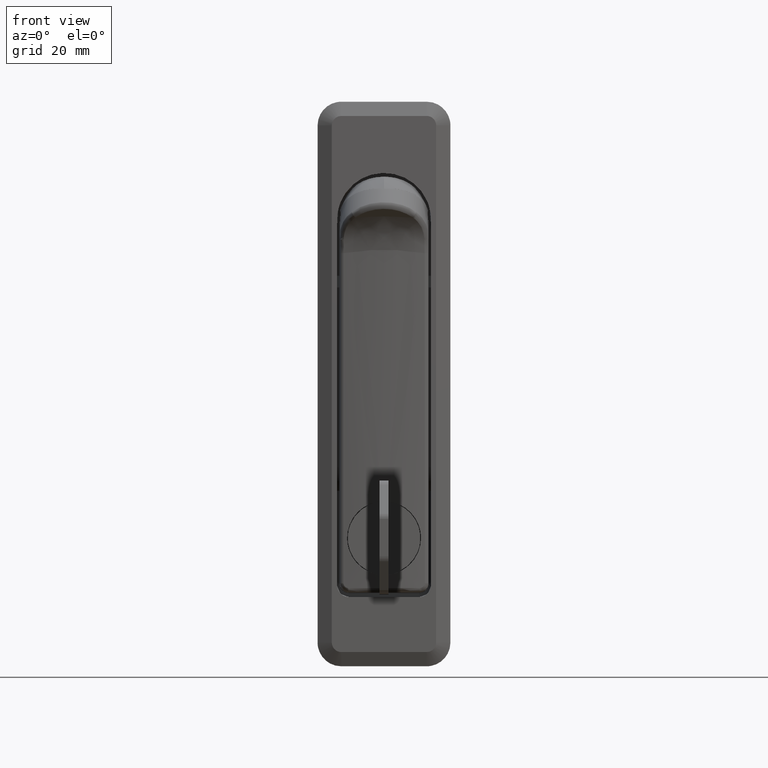
[diagram: clean part render]
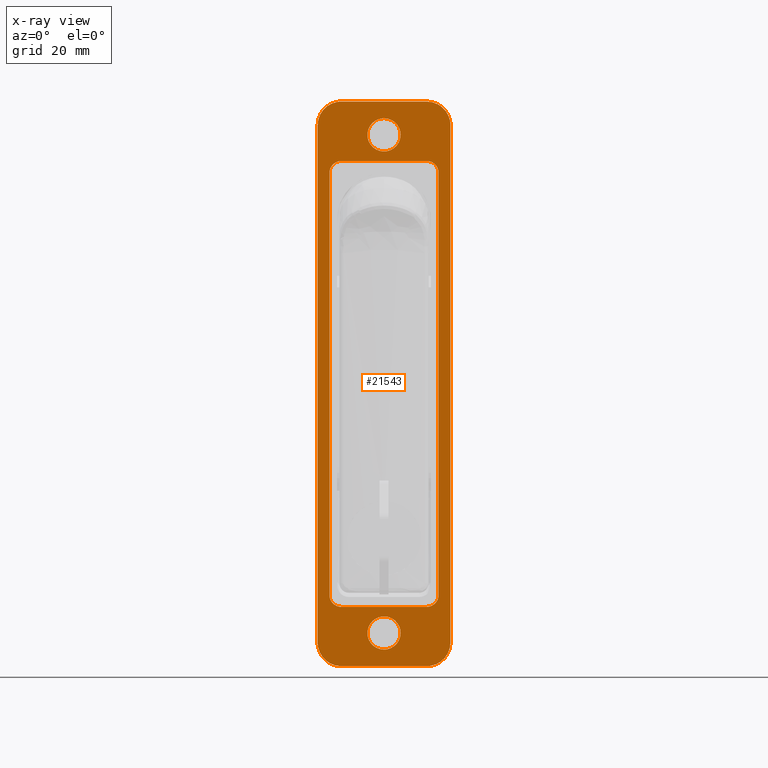
[diagram: x-ray — body ghosted, one internal face saturated and labeled with its STEP entity id]
A machine part, front view, then the same camera in x-ray: the body is ghosted and one INTERNAL B-rep face — a face not visible from any outside direction — is saturated and labeled: STEP entity #21543.
In plain terms, the highlighted face is a freeform B-spline surface patch.
Its self-contained STEP definition (entity closure, byte-faithful):
#14810=CARTESIAN_POINT('',(-7.632783E-017,-3.499866730716067,18.030542875196151));
#14811=VERTEX_POINT('',#14810);
#14817=CARTESIAN_POINT('',(0.0,0.0,14.500000000000220));
#14818=VERTEX_POINT('',#14817);
#14819=CARTESIAN_POINT('',(-7.632783E-017,-3.499866730716067,18.030542875196147));
#14820=CARTESIAN_POINT('',(0.0,-3.499999999999774,18.015271728824345));
#14821=CARTESIAN_POINT('',(0.0,-3.499999999999775,18.0));
#14822=CARTESIAN_POINT('',(0.0,-3.499999999999774,14.500000000000227));
#14823=CARTESIAN_POINT('',(0.0,0.0,14.500000000000220));
#14831=(BOUNDED_CURVE()B_SPLINE_CURVE(2,(#14819,#14820,#14821,#14822,#14823),.UNSPECIFIED.,.F.,.U.)B_SPLINE_CURVE_WITH_KNOTS((3,2,3),(0.248460105569204,0.250000000000000,0.500000000000000),.UNSPECIFIED.)CURVE()GEOMETRIC_REPRESENTATION_ITEM()RATIONAL_B_SPLINE_CURVE((0.996414027878677,0.998195901454125,1.0,0.707106781186548,1.0))REPRESENTATION_ITEM(''));
#14832=EDGE_CURVE('',#14811,#14818,#14831,.T.);
#14834=CARTESIAN_POINT('',(-7.976689E-017,3.472931748348015,17.565551992391701));
#14835=VERTEX_POINT('',#14834);
#14836=CARTESIAN_POINT('',(0.0,0.0,14.500000000000220));
#14837=CARTESIAN_POINT('',(0.0,3.089445099935811,14.500000000000226));
#14838=CARTESIAN_POINT('',(-7.976689E-017,3.472931748348014,17.565551992391701));
#14846=(BOUNDED_CURVE()B_SPLINE_CURVE(2,(#14836,#14837,#14838),.UNSPECIFIED.,.F.,.U.)B_SPLINE_CURVE_WITH_KNOTS((3,3),(0.500000000000000,0.728526070997352),.UNSPECIFIED.)CURVE()GEOMETRIC_REPRESENTATION_ITEM()RATIONAL_B_SPLINE_CURVE((1.0,0.732265053931176,0.954005430212723))REPRESENTATION_ITEM(''));
#14847=EDGE_CURVE('',#14818,#14835,#14846,.T.);
#14882=CARTESIAN_POINT('',(0.0,0.0,21.499999999999769));
#14883=VERTEX_POINT('',#14882);
#14884=CARTESIAN_POINT('',(-7.976689E-017,3.472931748348015,17.565551992391697));
#14885=CARTESIAN_POINT('',(0.0,3.499999999999775,17.781932753300005));
#14886=CARTESIAN_POINT('',(0.0,3.499999999999775,18.0));
#14887=CARTESIAN_POINT('',(0.0,3.499999999999774,21.499999999999769));
#14888=CARTESIAN_POINT('',(0.0,0.0,21.499999999999769));
#14896=(BOUNDED_CURVE()B_SPLINE_CURVE(2,(#14884,#14885,#14886,#14887,#14888),.UNSPECIFIED.,.F.,.U.)B_SPLINE_CURVE_WITH_KNOTS((3,2,3),(0.728526070997353,0.750000000000000,1.0),.UNSPECIFIED.)CURVE()GEOMETRIC_REPRESENTATION_ITEM()RATIONAL_B_SPLINE_CURVE((0.954005430212725,0.974841727255373,1.0,0.707106781186548,1.0))REPRESENTATION_ITEM(''));
#14897=EDGE_CURVE('',#14835,#14883,#14896,.T.);
#14899=CARTESIAN_POINT('',(0.0,0.0,21.499999999999769));
#14900=CARTESIAN_POINT('',(0.0,-3.469589235194919,21.499999999999773));
#14901=CARTESIAN_POINT('',(-7.632783E-017,-3.499866730716067,18.030542875196151));
#14909=(BOUNDED_CURVE()B_SPLINE_CURVE(2,(#14899,#14900,#14901),.UNSPECIFIED.,.F.,.U.)B_SPLINE_CURVE_WITH_KNOTS((3,3),(0.0,0.248460105569204),.UNSPECIFIED.)CURVE()GEOMETRIC_REPRESENTATION_ITEM()RATIONAL_B_SPLINE_CURVE((1.0,0.708910879732423,0.996414027878677))REPRESENTATION_ITEM(''));
#14910=EDGE_CURVE('',#14883,#14811,#14909,.T.);
#15154=CARTESIAN_POINT('',(-7.632783E-017,-3.499866730716057,-86.969457124803853));
#15155=VERTEX_POINT('',#15154);
#15161=CARTESIAN_POINT('',(0.0,0.0,-90.499999999999758));
#15162=VERTEX_POINT('',#15161);
#15163=CARTESIAN_POINT('',(-7.632783E-017,-3.499866730716057,-86.969457124803853));
#15164=CARTESIAN_POINT('',(0.0,-3.499999999999765,-86.984728271175655));
#15165=CARTESIAN_POINT('',(0.0,-3.499999999999765,-87.0));
#15166=CARTESIAN_POINT('',(0.0,-3.499999999999764,-90.499999999999744));
#15167=CARTESIAN_POINT('',(0.0,0.0,-90.499999999999758));
#15175=(BOUNDED_CURVE()B_SPLINE_CURVE(2,(#15163,#15164,#15165,#15166,#15167),.UNSPECIFIED.,.F.,.U.)B_SPLINE_CURVE_WITH_KNOTS((3,2,3),(0.248460105569204,0.250000000000000,0.500000000000000),.UNSPECIFIED.)CURVE()GEOMETRIC_REPRESENTATION_ITEM()RATIONAL_B_SPLINE_CURVE((0.996414027878678,0.998195901454125,1.0,0.707106781186548,1.0))REPRESENTATION_ITEM(''));
#15176=EDGE_CURVE('',#15155,#15162,#15175,.T.);
#15178=CARTESIAN_POINT('',(-7.976689E-017,3.472931748348004,-87.434448007608296));
#15179=VERTEX_POINT('',#15178);
#15180=CARTESIAN_POINT('',(0.0,0.0,-90.499999999999758));
#15181=CARTESIAN_POINT('',(0.0,3.089445099935803,-90.499999999999744));
#15182=CARTESIAN_POINT('',(-7.976689E-017,3.472931748348004,-87.434448007608296));
#15190=(BOUNDED_CURVE()B_SPLINE_CURVE(2,(#15180,#15181,#15182),.UNSPECIFIED.,.F.,.U.)B_SPLINE_CURVE_WITH_KNOTS((3,3),(0.500000000000000,0.728526070997352),.UNSPECIFIED.)CURVE()GEOMETRIC_REPRESENTATION_ITEM()RATIONAL_B_SPLINE_CURVE((1.0,0.732265053931176,0.954005430212723))REPRESENTATION_ITEM(''));
#15191=EDGE_CURVE('',#15162,#15179,#15190,.T.);
#15226=CARTESIAN_POINT('',(0.0,0.0,-83.500000000000227));
#15227=VERTEX_POINT('',#15226);
#15228=CARTESIAN_POINT('',(-7.976689E-017,3.472931748348004,-87.434448007608296));
#15229=CARTESIAN_POINT('',(0.0,3.499999999999766,-87.218067246700002));
#15230=CARTESIAN_POINT('',(0.0,3.499999999999765,-87.0));
#15231=CARTESIAN_POINT('',(0.0,3.499999999999764,-83.500000000000227));
#15232=CARTESIAN_POINT('',(0.0,0.0,-83.500000000000227));
#15240=(BOUNDED_CURVE()B_SPLINE_CURVE(2,(#15228,#15229,#15230,#15231,#15232),.UNSPECIFIED.,.F.,.U.)B_SPLINE_CURVE_WITH_KNOTS((3,2,3),(0.728526070997353,0.750000000000000,1.0),.UNSPECIFIED.)CURVE()GEOMETRIC_REPRESENTATION_ITEM()RATIONAL_B_SPLINE_CURVE((0.954005430212724,0.974841727255373,1.0,0.707106781186548,1.0))REPRESENTATION_ITEM(''));
#15241=EDGE_CURVE('',#15179,#15227,#15240,.T.);
#15243=CARTESIAN_POINT('',(0.0,0.0,-83.500000000000227));
#15244=CARTESIAN_POINT('',(0.0,-3.469589235194921,-83.500000000000242));
#15245=CARTESIAN_POINT('',(-7.632783E-017,-3.499866730716057,-86.969457124803853));
#15253=(BOUNDED_CURVE()B_SPLINE_CURVE(2,(#15243,#15244,#15245),.UNSPECIFIED.,.F.,.U.)B_SPLINE_CURVE_WITH_KNOTS((3,3),(0.0,0.248460105569204),.UNSPECIFIED.)CURVE()GEOMETRIC_REPRESENTATION_ITEM()RATIONAL_B_SPLINE_CURVE((1.0,0.708910879732422,0.996414027878678))REPRESENTATION_ITEM(''));
#15254=EDGE_CURVE('',#15227,#15155,#15253,.T.);
#17729=CARTESIAN_POINT('',(7.993606E-015,-9.000000000000119,-81.493864799750398));
#17730=VERTEX_POINT('',#17729);
#17745=CARTESIAN_POINT('',(0.0,-11.500000000000121,-78.993670632525991));
#17746=VERTEX_POINT('',#17745);
#17760=CARTESIAN_POINT('',(7.993606E-015,-9.000000000000119,-81.493864799750398));
#17761=CARTESIAN_POINT('',(7.993606E-015,-9.165074329170757,-81.493864799750426));
#17762=CARTESIAN_POINT('',(-2.235030E-031,-9.327391343037091,-81.477674388700962));
#17763=CARTESIAN_POINT('',(0.0,-9.566900107195949,-81.430096760348107));
#17764=CARTESIAN_POINT('',(0.0,-9.646070324395859,-81.410326710087077));
#17765=CARTESIAN_POINT('',(0.0,-9.803048365762519,-81.362786906671559));
#17766=CARTESIAN_POINT('',(0.0,-9.881072053864902,-81.334882072726060));
#17767=CARTESIAN_POINT('',(0.0,-10.108040808182251,-81.240859154536381));
#17768=CARTESIAN_POINT('',(0.0,-10.251576015377520,-81.164143533055679));
#17769=CARTESIAN_POINT('',(0.0,-10.421362123544560,-81.050866999031456));
#17770=CARTESIAN_POINT('',(0.0,-10.454833367573951,-81.027334774011564));
#17771=CARTESIAN_POINT('',(0.0,-10.520788427538561,-80.978488567621909));
#17772=CARTESIAN_POINT('',(0.0,-10.553355057647529,-80.953105395973381));
#17773=CARTESIAN_POINT('',(0.0,-10.648896623946451,-80.874755059834683));
#17774=CARTESIAN_POINT('',(0.0,-10.709520435004951,-80.819787983007117));
#17775=CARTESIAN_POINT('',(0.0,-10.882468796804909,-80.646943140512192));
#17776=CARTESIAN_POINT('',(0.0,-10.985954604402490,-80.521196834601625));
#17777=CARTESIAN_POINT('',(0.0,-11.100197798885050,-80.350558913768722));
#17778=CARTESIAN_POINT('',(0.0,-11.122341040200590,-80.315652816068123));
#17779=CARTESIAN_POINT('',(0.0,-11.164691418781510,-80.245090244805041));
#17780=CARTESIAN_POINT('',(0.0,-11.184916982069121,-80.209418556354549));
#17781=CARTESIAN_POINT('',(0.0,-11.242797571600709,-80.101253980092409));
#17782=CARTESIAN_POINT('',(0.0,-11.312528653892381,-79.953974621853575));
#17783=CARTESIAN_POINT('',(0.0,-11.367601229801110,-79.800668973058109));
#17784=CARTESIAN_POINT('',(0.0,-11.403335016687780,-79.683399576417145));
#17785=CARTESIAN_POINT('',(0.0,-11.414316195575511,-79.643927408916824));
#17786=CARTESIAN_POINT('',(0.0,-11.434385337781951,-79.564204749930880));
#17787=CARTESIAN_POINT('',(0.0,-11.443484754205620,-79.523879741024089));
#17788=CARTESIAN_POINT('',(0.0,-11.483811488288600,-79.322019323713093));
#17789=CARTESIAN_POINT('',(0.0,-11.500000000000110,-79.158744599424352));
#17790=CARTESIAN_POINT('',(0.0,-11.500000000000121,-78.993670632525991));
#17791=B_SPLINE_CURVE_WITH_KNOTS('',3,(#17760,#17761,#17762,#17763,#17764,#17765,#17766,#17767,#17768,#17769,#17770,#17771,#17772,#17773,#17774,#17775,#17776,#17777,#17778,#17779,#17780,#17781,#17782,#17783,#17784,#17785,#17786,#17787,#17788,#17789,#17790),.UNSPECIFIED.,.F.,.U.,(4,2,2,2,2,2,2,2,2,2,2,1,2,2,2,4),(0.0,0.125000000000001,0.187500000000000,0.250000000000000,0.374999999999995,0.406249999999993,0.437499999999992,0.499999999999996,0.625000000000004,0.656250000000006,0.687500000000007,0.750000000000002,0.812499999999996,0.843749999999998,0.875000000000001,1.0),.UNSPECIFIED.);
#17792=EDGE_CURVE('',#17730,#17746,#17791,.T.);
#17814=CARTESIAN_POINT('',(0.0,11.500000000000000,-78.993670632525991));
#17815=VERTEX_POINT('',#17814);
#17830=CARTESIAN_POINT('',(7.993606E-015,9.0,-81.493864799750398));
#17831=VERTEX_POINT('',#17830);
#17845=CARTESIAN_POINT('',(0.0,11.500000000000000,-78.993670632525991));
#17846=CARTESIAN_POINT('',(0.0,11.500000000000000,-79.158744818135887));
#17847=CARTESIAN_POINT('',(0.0,11.483813401081839,-79.321062428913109));
#17848=CARTESIAN_POINT('',(0.0,11.436246513696091,-79.560573075113709));
#17849=CARTESIAN_POINT('',(0.0,11.416480892726740,-79.639744086285830));
#17850=CARTESIAN_POINT('',(0.0,11.368951660947699,-79.796724052424381));
#17851=CARTESIAN_POINT('',(0.0,11.341052630769230,-79.874750048611119));
#17852=CARTESIAN_POINT('',(0.0,11.247047746570200,-80.101728307927814));
#17853=CARTESIAN_POINT('',(0.0,11.170346089879400,-80.245270903969953));
#17854=CARTESIAN_POINT('',(0.0,11.057089079221839,-80.415067364031572));
#17855=CARTESIAN_POINT('',(0.0,11.033560863986800,-80.448540735183968));
#17856=CARTESIAN_POINT('',(0.0,10.984722884901091,-80.514500161455359));
#17857=CARTESIAN_POINT('',(0.0,10.959344272171030,-80.547068669626697));
#17858=CARTESIAN_POINT('',(0.0,10.881003265224489,-80.642621354472382));
#17859=CARTESIAN_POINT('',(0.0,10.826042466060461,-80.703252400838082));
#17860=CARTESIAN_POINT('',(0.0,10.653216634566430,-80.876221964000919));
#17861=CARTESIAN_POINT('',(0.0,10.527483239361670,-80.979721239032571));
#17862=CARTESIAN_POINT('',(0.0,10.356861773579460,-81.093980430197433));
#17863=CARTESIAN_POINT('',(0.0,10.321958781197781,-81.116127014972761));
#17864=CARTESIAN_POINT('',(0.0,10.251398642651600,-81.158485984354371));
#17865=CARTESIAN_POINT('',(0.0,10.215728179914260,-81.178715623290572));
#17866=CARTESIAN_POINT('',(0.0,10.107567321807480,-81.236607825503299));
#17867=CARTESIAN_POINT('',(0.0,9.960293015809956,-81.306352721004657));
#17868=CARTESIAN_POINT('',(0.0,9.806992787078897,-81.361436261616134));
#17869=CARTESIAN_POINT('',(0.0,9.689727609931174,-81.397177225189850));
#17870=CARTESIAN_POINT('',(0.0,9.650256876583740,-81.408160626071549));
#17871=CARTESIAN_POINT('',(0.0,9.570537147888800,-81.428233879595865));
#17872=CARTESIAN_POINT('',(0.0,9.530212749098618,-81.437335413480682));
#17873=CARTESIAN_POINT('',(0.0,9.328350375977207,-81.477672387923718));
#17874=CARTESIAN_POINT('',(0.0,9.165074551767228,-81.493864799750398));
#17875=CARTESIAN_POINT('',(0.0,8.999999999999998,-81.493864799750398));
#17876=B_SPLINE_CURVE_WITH_KNOTS('',3,(#17845,#17846,#17847,#17848,#17849,#17850,#17851,#17852,#17853,#17854,#17855,#17856,#17857,#17858,#17859,#17860,#17861,#17862,#17863,#17864,#17865,#17866,#17867,#17868,#17869,#17870,#17871,#17872,#17873,#17874,#17875),.UNSPECIFIED.,.F.,.U.,(4,2,2,2,2,2,2,2,2,2,2,1,2,2,2,4),(0.0,0.124999999999996,0.187500000000000,0.250000000000003,0.375000000000000,0.406249999999998,0.437499999999996,0.499999999999991,0.624999999999991,0.656249999999992,0.687499999999993,0.749999999999997,0.812500000000001,0.843750000000001,0.875000000000001,1.0),.UNSPECIFIED.);
#17877=EDGE_CURVE('',#17815,#17831,#17876,.T.);
#17954=CARTESIAN_POINT('',(0.0,-11.500000000000121,10.0));
#17955=VERTEX_POINT('',#17954);
#17962=CARTESIAN_POINT('',(0.0,-9.000000000000119,12.500000000000000));
#17963=VERTEX_POINT('',#17962);
#17969=CARTESIAN_POINT('',(0.0,-11.500000000000121,10.0));
#17970=CARTESIAN_POINT('',(0.0,-11.500000000000119,12.500000000000000));
#17971=CARTESIAN_POINT('',(0.0,-9.000000000000119,12.500000000000000));
#17979=(BOUNDED_CURVE()B_SPLINE_CURVE(2,(#17969,#17970,#17971),.UNSPECIFIED.,.F.,.U.)CURVE()GEOMETRIC_REPRESENTATION_ITEM()QUASI_UNIFORM_CURVE()RATIONAL_B_SPLINE_CURVE((1.0,0.707106781186548,1.0))REPRESENTATION_ITEM(''));
#17980=EDGE_CURVE('',#17955,#17963,#17979,.T.);
#17999=CARTESIAN_POINT('',(0.0,9.0,12.500000000000000));
#18000=VERTEX_POINT('',#17999);
#18007=CARTESIAN_POINT('',(0.0,11.500000000000000,10.0));
#18008=VERTEX_POINT('',#18007);
#18014=CARTESIAN_POINT('',(0.0,9.0,12.500000000000000));
#18015=CARTESIAN_POINT('',(0.0,11.500000000000000,12.500000000000000));
#18016=CARTESIAN_POINT('',(0.0,11.500000000000000,10.0));
#18024=(BOUNDED_CURVE()B_SPLINE_CURVE(2,(#18014,#18015,#18016),.UNSPECIFIED.,.F.,.U.)CURVE()GEOMETRIC_REPRESENTATION_ITEM()QUASI_UNIFORM_CURVE()RATIONAL_B_SPLINE_CURVE((1.0,0.707106781186548,1.0))REPRESENTATION_ITEM(''));
#18025=EDGE_CURVE('',#18000,#18008,#18024,.T.);
#20590=CARTESIAN_POINT('',(0.0,-9.000000000000119,12.500000000000000));
#20591=CARTESIAN_POINT('',(0.0,9.0,12.500000000000000));
#20592=QUASI_UNIFORM_CURVE('',1,(#20590,#20591),.UNSPECIFIED.,.F.,.U.);
#20593=EDGE_CURVE('',#17963,#18000,#20592,.T.);
#20913=CARTESIAN_POINT('',(7.993606E-015,-9.000000000000119,-81.493864799750398));
#20914=CARTESIAN_POINT('',(7.993606E-015,9.0,-81.493864799750398));
#20915=QUASI_UNIFORM_CURVE('',1,(#20913,#20914),.UNSPECIFIED.,.F.,.U.);
#20916=EDGE_CURVE('',#17730,#17831,#20915,.T.);
#21120=CARTESIAN_POINT('',(0.0,-11.500000000000121,10.0));
#21121=CARTESIAN_POINT('',(0.0,-11.500000000000121,-78.993670632525991));
#21122=QUASI_UNIFORM_CURVE('',1,(#21120,#21121),.UNSPECIFIED.,.F.,.U.);
#21123=EDGE_CURVE('',#17955,#17746,#21122,.T.);
#21188=CARTESIAN_POINT('',(0.0,11.500000000000000,-78.993670632525991));
#21189=CARTESIAN_POINT('',(0.0,11.500000000000000,10.0));
#21190=QUASI_UNIFORM_CURVE('',1,(#21188,#21189),.UNSPECIFIED.,.F.,.U.);
#21191=EDGE_CURVE('',#17815,#18008,#21190,.T.);
#21267=CARTESIAN_POINT('',(0.0,14.0,-89.0));
#21268=VERTEX_POINT('',#21267);
#21275=CARTESIAN_POINT('',(0.0,14.0,20.0));
#21276=VERTEX_POINT('',#21275);
#21282=CARTESIAN_POINT('',(0.0,14.0,-89.0));
#21283=CARTESIAN_POINT('',(0.0,14.0,20.0));
#21284=QUASI_UNIFORM_CURVE('',1,(#21282,#21283),.UNSPECIFIED.,.F.,.U.);
#21285=EDGE_CURVE('',#21268,#21276,#21284,.T.);
#21304=CARTESIAN_POINT('',(0.0,9.0,-94.0));
#21305=VERTEX_POINT('',#21304);
#21313=CARTESIAN_POINT('',(0.0,8.999999999999890,-94.0));
#21314=CARTESIAN_POINT('',(0.0,13.999999999999892,-94.000000000000014));
#21315=CARTESIAN_POINT('',(0.0,13.999999999999890,-89.0));
#21323=(BOUNDED_CURVE()B_SPLINE_CURVE(2,(#21313,#21314,#21315),.UNSPECIFIED.,.F.,.U.)CURVE()GEOMETRIC_REPRESENTATION_ITEM()QUASI_UNIFORM_CURVE()RATIONAL_B_SPLINE_CURVE((1.0,0.707106781186548,1.0))REPRESENTATION_ITEM(''));
#21324=EDGE_CURVE('',#21305,#21268,#21323,.T.);
#21334=CARTESIAN_POINT('',(0.0,-9.0,-94.0));
#21335=VERTEX_POINT('',#21334);
#21343=CARTESIAN_POINT('',(0.0,-9.0,-94.0));
#21344=CARTESIAN_POINT('',(0.0,9.0,-94.0));
#21345=QUASI_UNIFORM_CURVE('',1,(#21343,#21344),.UNSPECIFIED.,.F.,.U.);
#21346=EDGE_CURVE('',#21335,#21305,#21345,.T.);
#21365=CARTESIAN_POINT('',(0.0,-14.0,-89.0));
#21366=VERTEX_POINT('',#21365);
#21374=CARTESIAN_POINT('',(0.0,-14.0,-89.0));
#21375=CARTESIAN_POINT('',(0.0,-13.999999999999998,-94.000000000000014));
#21376=CARTESIAN_POINT('',(0.0,-9.0,-94.0));
#21384=(BOUNDED_CURVE()B_SPLINE_CURVE(2,(#21374,#21375,#21376),.UNSPECIFIED.,.F.,.U.)CURVE()GEOMETRIC_REPRESENTATION_ITEM()QUASI_UNIFORM_CURVE()RATIONAL_B_SPLINE_CURVE((1.0,0.707106781186548,1.0))REPRESENTATION_ITEM(''));
#21385=EDGE_CURVE('',#21366,#21335,#21384,.T.);
#21395=CARTESIAN_POINT('',(0.0,-14.0,20.0));
#21396=VERTEX_POINT('',#21395);
#21404=CARTESIAN_POINT('',(0.0,-14.0,20.0));
#21405=CARTESIAN_POINT('',(0.0,-14.0,-89.0));
#21406=QUASI_UNIFORM_CURVE('',1,(#21404,#21405),.UNSPECIFIED.,.F.,.U.);
#21407=EDGE_CURVE('',#21396,#21366,#21406,.T.);
#21426=CARTESIAN_POINT('',(0.0,-9.0,25.0));
#21427=VERTEX_POINT('',#21426);
#21435=CARTESIAN_POINT('',(0.0,-9.0,25.0));
#21436=CARTESIAN_POINT('',(0.0,-13.999999999999998,25.0));
#21437=CARTESIAN_POINT('',(0.0,-14.0,20.0));
#21445=(BOUNDED_CURVE()B_SPLINE_CURVE(2,(#21435,#21436,#21437),.UNSPECIFIED.,.F.,.U.)CURVE()GEOMETRIC_REPRESENTATION_ITEM()QUASI_UNIFORM_CURVE()RATIONAL_B_SPLINE_CURVE((1.0,0.707106781186548,1.0))REPRESENTATION_ITEM(''));
#21446=EDGE_CURVE('',#21427,#21396,#21445,.T.);
#21456=CARTESIAN_POINT('',(0.0,9.0,25.0));
#21457=VERTEX_POINT('',#21456);
#21465=CARTESIAN_POINT('',(0.0,9.0,25.0));
#21466=CARTESIAN_POINT('',(0.0,-9.0,25.0));
#21467=QUASI_UNIFORM_CURVE('',1,(#21465,#21466),.UNSPECIFIED.,.F.,.U.);
#21468=EDGE_CURVE('',#21457,#21427,#21467,.T.);
#21490=CARTESIAN_POINT('',(0.0,14.0,20.0));
#21491=CARTESIAN_POINT('',(0.0,13.999999999999892,25.0));
#21492=CARTESIAN_POINT('',(0.0,9.0,25.0));
#21500=(BOUNDED_CURVE()B_SPLINE_CURVE(2,(#21490,#21491,#21492),.UNSPECIFIED.,.F.,.U.)CURVE()GEOMETRIC_REPRESENTATION_ITEM()QUASI_UNIFORM_CURVE()RATIONAL_B_SPLINE_CURVE((1.0,0.707106781186548,1.0))REPRESENTATION_ITEM(''));
#21501=EDGE_CURVE('',#21276,#21457,#21500,.T.);
#21506=CARTESIAN_POINT('',(0.0,-15.398599945730570,30.944049769354919));
#21507=CARTESIAN_POINT('',(0.0,15.398600696749090,30.944049769354919));
#21508=CARTESIAN_POINT('',(0.0,-15.398599945730570,-99.944052961183658));
#21509=CARTESIAN_POINT('',(0.0,15.398600696749090,-99.944052961183658));
#21510=B_SPLINE_SURFACE_WITH_KNOTS('',1,1,((#21506,#21508),(#21507,#21509)),.UNSPECIFIED.,.F.,.F.,.U.,(2,2),(2,2),(0.0,30.797200642479659),(0.0,130.888102730538610),.UNSPECIFIED.);
#21511=ORIENTED_EDGE('',*,*,#21501,.T.);
#21512=ORIENTED_EDGE('',*,*,#21468,.T.);
#21513=ORIENTED_EDGE('',*,*,#21446,.T.);
#21514=ORIENTED_EDGE('',*,*,#21407,.T.);
#21515=ORIENTED_EDGE('',*,*,#21385,.T.);
#21516=ORIENTED_EDGE('',*,*,#21346,.T.);
#21517=ORIENTED_EDGE('',*,*,#21324,.T.);
#21518=ORIENTED_EDGE('',*,*,#21285,.T.);
#21519=EDGE_LOOP('',(#21511,#21512,#21513,#21514,#21515,#21516,#21517,#21518));
#21520=FACE_OUTER_BOUND('',#21519,.T.);
#21521=ORIENTED_EDGE('',*,*,#21123,.F.);
#21522=ORIENTED_EDGE('',*,*,#17980,.T.);
#21523=ORIENTED_EDGE('',*,*,#20593,.T.);
#21524=ORIENTED_EDGE('',*,*,#18025,.T.);
#21525=ORIENTED_EDGE('',*,*,#21191,.F.);
#21526=ORIENTED_EDGE('',*,*,#17877,.T.);
#21527=ORIENTED_EDGE('',*,*,#20916,.F.);
#21528=ORIENTED_EDGE('',*,*,#17792,.T.);
#21529=EDGE_LOOP('',(#21521,#21522,#21523,#21524,#21525,#21526,#21527,#21528));
#21530=FACE_BOUND('',#21529,.T.);
#21531=ORIENTED_EDGE('',*,*,#15254,.F.);
#21532=ORIENTED_EDGE('',*,*,#15241,.F.);
#21533=ORIENTED_EDGE('',*,*,#15191,.F.);
#21534=ORIENTED_EDGE('',*,*,#15176,.F.);
#21535=EDGE_LOOP('',(#21531,#21532,#21533,#21534));
#21536=FACE_BOUND('',#21535,.T.);
#21537=ORIENTED_EDGE('',*,*,#14910,.F.);
#21538=ORIENTED_EDGE('',*,*,#14897,.F.);
#21539=ORIENTED_EDGE('',*,*,#14847,.F.);
#21540=ORIENTED_EDGE('',*,*,#14832,.F.);
#21541=EDGE_LOOP('',(#21537,#21538,#21539,#21540));
#21542=FACE_BOUND('',#21541,.T.);
#21543=ADVANCED_FACE('',(#21520,#21530,#21536,#21542),#21510,.F.);